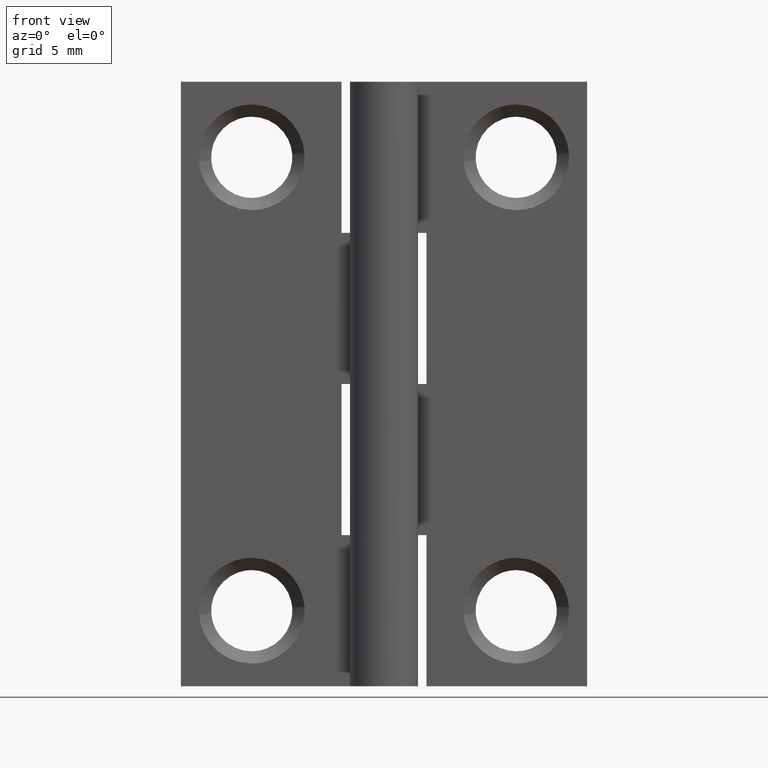
[diagram: clean part render]
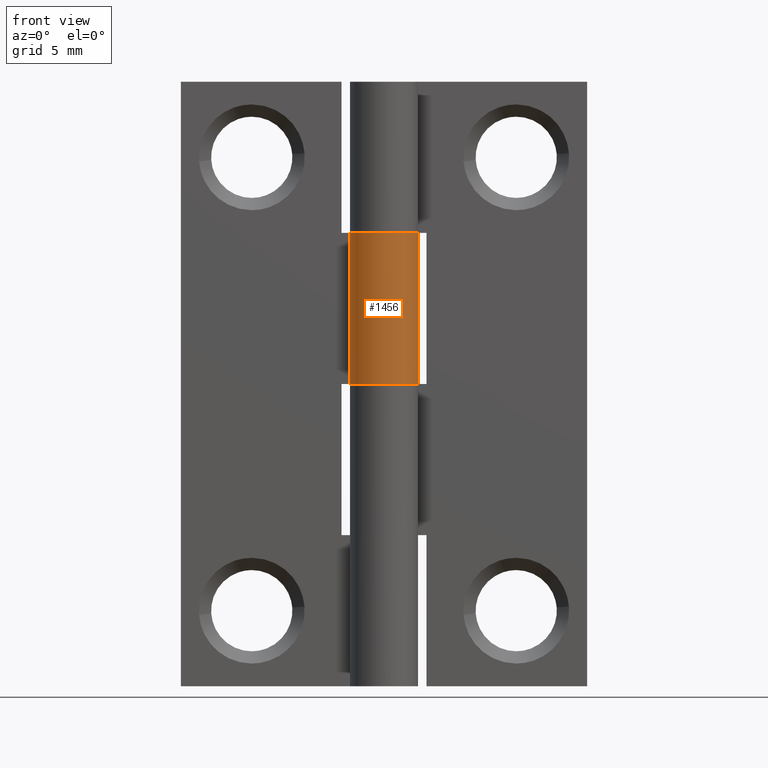
[diagram: same view with one face highlighted and labeled with its STEP entity id]
A machine part, front view. The second image highlights one B-rep face of the part: STEP entity #1456.
In plain terms, the highlighted face is a freeform B-spline surface patch.
Its self-contained STEP definition (entity closure, byte-faithful):
#1020=CARTESIAN_POINT('',(-1.528888485142075,0.949999999999986,24.0));
#1021=VERTEX_POINT('',#1020);
#1027=CARTESIAN_POINT('',(0.0,1.799999000000000,24.0));
#1028=VERTEX_POINT('',#1027);
#1029=CARTESIAN_POINT('',(0.0,1.799999000000000,24.0));
#1030=CARTESIAN_POINT('',(1.392801052929096,1.799998304105395,24.000000000000011));
#1031=CARTESIAN_POINT('',(1.742381113599921,0.451781698599382,24.0));
#1032=CARTESIAN_POINT('',(2.091961174270749,-0.896434906906632,24.000000000000011));
#1033=CARTESIAN_POINT('',(0.874642784226802,-1.573213772255223,24.0));
#1034=CARTESIAN_POINT('',(-0.342675605817144,-2.249992637603815,24.000000000000011));
#1035=CARTESIAN_POINT('',(-1.303326767780338,-1.241506385276014,24.0));
#1036=CARTESIAN_POINT('',(-2.263977929743532,-0.233020132948214,24.000000000000011));
#1037=CARTESIAN_POINT('',(-1.528888485142075,0.949999999999986,24.0));
#1045=(BOUNDED_CURVE()B_SPLINE_CURVE(2,(#1029,#1030,#1031,#1032,#1033,#1034,#1035,#1036,#1037),.UNSPECIFIED.,.F.,.U.)B_SPLINE_CURVE_WITH_KNOTS((3,2,2,2,3),(0.0,0.250000000000000,0.500000000000000,0.750000000000000,1.0),.UNSPECIFIED.)CURVE()GEOMETRIC_REPRESENTATION_ITEM()RATIONAL_B_SPLINE_CURVE((1.0,0.790882628363956,1.0,0.790882628363956,1.0,0.790882628363956,1.0,0.790882628363956,1.0))REPRESENTATION_ITEM(''));
#1046=EDGE_CURVE('',#1028,#1021,#1045,.T.);
#1048=CARTESIAN_POINT('',(-0.001897366346216,1.799999000000000,24.0));
#1049=VERTEX_POINT('',#1048);
#1050=CARTESIAN_POINT('',(-0.001897366346216,1.799999000000000,24.0));
#1051=CARTESIAN_POINT('',(0.0,1.799999000000000,24.0));
#1052=QUASI_UNIFORM_CURVE('',1,(#1050,#1051),.UNSPECIFIED.,.F.,.U.);
#1053=EDGE_CURVE('',#1049,#1028,#1052,.T.);
#1183=CARTESIAN_POINT('',(-0.001897366346216,1.799998999999940,16.0));
#1184=VERTEX_POINT('',#1183);
#1190=CARTESIAN_POINT('',(0.0,1.799998999999940,16.0));
#1191=VERTEX_POINT('',#1190);
#1192=CARTESIAN_POINT('',(-0.001897366346216,1.799998999999940,16.0));
#1193=CARTESIAN_POINT('',(0.0,1.799998999999940,16.0));
#1194=QUASI_UNIFORM_CURVE('',1,(#1192,#1193),.UNSPECIFIED.,.F.,.U.);
#1195=EDGE_CURVE('',#1184,#1191,#1194,.T.);
#1197=CARTESIAN_POINT('',(-1.528888485142075,0.949999999999986,16.0));
#1198=VERTEX_POINT('',#1197);
#1199=CARTESIAN_POINT('',(0.0,1.799998999999940,16.0));
#1200=CARTESIAN_POINT('',(1.392801052929096,1.799998304105293,15.999999999999998));
#1201=CARTESIAN_POINT('',(1.742381113599921,0.451781698599292,16.0));
#1202=CARTESIAN_POINT('',(2.091961174270749,-0.896434906906709,15.999999999999998));
#1203=CARTESIAN_POINT('',(0.874642784226802,-1.573213772255253,16.0));
#1204=CARTESIAN_POINT('',(-0.342675605817144,-2.249992637603797,15.999999999999998));
#1205=CARTESIAN_POINT('',(-1.303326767780338,-1.241506385275984,16.0));
#1206=CARTESIAN_POINT('',(-2.263977929743532,-0.233020132948172,15.999999999999998));
#1207=CARTESIAN_POINT('',(-1.528888485142075,0.949999999999986,16.0));
#1215=(BOUNDED_CURVE()B_SPLINE_CURVE(2,(#1199,#1200,#1201,#1202,#1203,#1204,#1205,#1206,#1207),.UNSPECIFIED.,.F.,.U.)B_SPLINE_CURVE_WITH_KNOTS((3,2,2,2,3),(0.0,0.250000000000000,0.500000000000000,0.750000000000000,1.0),.UNSPECIFIED.)CURVE()GEOMETRIC_REPRESENTATION_ITEM()RATIONAL_B_SPLINE_CURVE((1.0,0.790882628363956,1.0,0.790882628363956,1.0,0.790882628363956,1.0,0.790882628363956,1.0))REPRESENTATION_ITEM(''));
#1216=EDGE_CURVE('',#1191,#1198,#1215,.T.);
#1418=CARTESIAN_POINT('',(-0.017605049270856,1.799913904118797,15.800000000000001));
#1419=CARTESIAN_POINT('',(-0.017605049270856,1.799913904118797,24.205000000000009));
#1420=CARTESIAN_POINT('',(2.191930709917128,1.821525485549002,15.800000000000001));
#1421=CARTESIAN_POINT('',(2.191930709917128,1.821525485549002,24.205000000000005));
#1422=CARTESIAN_POINT('',(1.766288852308502,-0.346732880198450,15.800000000000001));
#1423=CARTESIAN_POINT('',(1.766288852308502,-0.346732880198450,24.205000000000009));
#1424=CARTESIAN_POINT('',(1.340646994699876,-2.514991245945901,15.800000000000001));
#1425=CARTESIAN_POINT('',(1.340646994699876,-2.514991245945901,24.205000000000005));
#1426=CARTESIAN_POINT('',(-0.696744238231076,-1.659682941555945,15.800000000000001));
#1427=CARTESIAN_POINT('',(-0.696744238231076,-1.659682941555945,24.205000000000009));
#1428=CARTESIAN_POINT('',(-2.734135471162029,-0.804374637165988,15.800000000000001));
#1429=CARTESIAN_POINT('',(-2.734135471162029,-0.804374637165988,24.205000000000005));
#1430=CARTESIAN_POINT('',(-1.484500995525655,1.017966990763126,15.800000000000001));
#1431=CARTESIAN_POINT('',(-1.484500995525655,1.017966990763126,24.205000000000009));
#1439=(BOUNDED_SURFACE()B_SPLINE_SURFACE(1,2,((#1418,#1420,#1422,#1424,#1426,#1428,#1430),(#1419,#1421,#1423,#1425,#1427,#1429,#1431)),.UNSPECIFIED.,.F.,.F.,.U.)B_SPLINE_SURFACE_WITH_KNOTS((2,2),(3,2,2,3),(0.0,8.405000000000007),(0.0,3.421378328518648,6.842756657037295,10.264134985555939),.UNSPECIFIED.)GEOMETRIC_REPRESENTATION_ITEM()RATIONAL_B_SPLINE_SURFACE(((1.0,0.631578351302498,1.0,0.631578351302498,1.0,0.631578351302498,1.0),(1.0,0.631578351302498,1.0,0.631578351302498,1.0,0.631578351302498,1.0)))REPRESENTATION_ITEM('')SURFACE());
#1440=ORIENTED_EDGE('',*,*,#1053,.T.);
#1441=ORIENTED_EDGE('',*,*,#1046,.T.);
#1442=CARTESIAN_POINT('',(-1.528888485142075,0.949999999999986,16.0));
#1443=CARTESIAN_POINT('',(-1.528888485142075,0.949999999999986,24.0));
#1444=QUASI_UNIFORM_CURVE('',1,(#1442,#1443),.UNSPECIFIED.,.F.,.U.);
#1445=EDGE_CURVE('',#1198,#1021,#1444,.T.);
#1446=ORIENTED_EDGE('',*,*,#1445,.F.);
#1447=ORIENTED_EDGE('',*,*,#1216,.F.);
#1448=ORIENTED_EDGE('',*,*,#1195,.F.);
#1449=CARTESIAN_POINT('',(-0.001897366346216,1.799998999999940,16.0));
#1450=CARTESIAN_POINT('',(-0.001897366346216,1.799999000000000,24.0));
#1451=QUASI_UNIFORM_CURVE('',1,(#1449,#1450),.UNSPECIFIED.,.F.,.U.);
#1452=EDGE_CURVE('',#1184,#1049,#1451,.T.);
#1453=ORIENTED_EDGE('',*,*,#1452,.T.);
#1454=EDGE_LOOP('',(#1440,#1441,#1446,#1447,#1448,#1453));
#1455=FACE_OUTER_BOUND('',#1454,.T.);
#1456=ADVANCED_FACE('',(#1455),#1439,.T.);